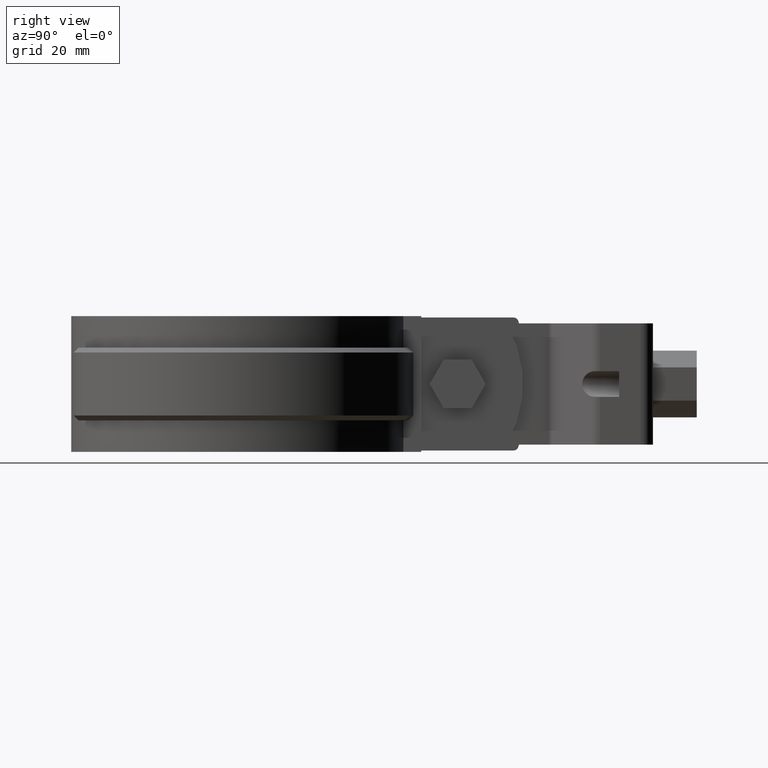
[diagram: clean part render]
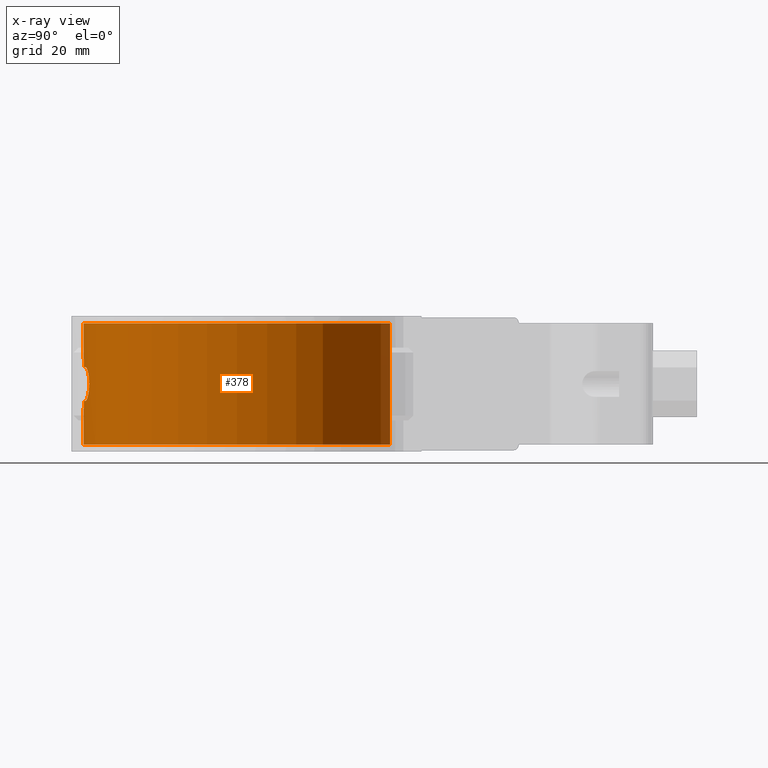
[diagram: x-ray — body ghosted, one internal face saturated and labeled with its STEP entity id]
A machine part, right view, then the same camera in x-ray: the body is ghosted and one INTERNAL B-rep face — a face not visible from any outside direction — is saturated and labeled: STEP entity #378.
In plain terms, the highlighted cylindrical surface (partial cylindrical patch) has radius 31.95 mm, axis along (0, 0, -1).
Its self-contained STEP definition (entity closure, byte-faithful):
#378 = ADVANCED_FACE( '', ( #737, #738 ), #739, .F. );
#737 = FACE_OUTER_BOUND( '', #1472, .T. );
#738 = FACE_BOUND( '', #1473, .T. );
#739 = CYLINDRICAL_SURFACE( '', #1474, 31.9500000000000 );
#1472 = EDGE_LOOP( '', ( #3282, #3283, #3284, #3285 ) );
#1473 = EDGE_LOOP( '', ( #3286, #3287, #3288, #3289, #3290, #3291, #3292, #3293, #3294, #3295, #3296, #3297, #3298, #3299, #3300, #3301 ) );
#1474 = AXIS2_PLACEMENT_3D( '', #3302, #3303, #3304 );
#3282 = ORIENTED_EDGE( '', *, *, #6882, .T. );
#3283 = ORIENTED_EDGE( '', *, *, #6883, .F. );
#3284 = ORIENTED_EDGE( '', *, *, #6884, .F. );
#3285 = ORIENTED_EDGE( '', *, *, #6885, .T. );
#3286 = ORIENTED_EDGE( '', *, *, #6886, .T. );
#3287 = ORIENTED_EDGE( '', *, *, #6887, .T. );
#3288 = ORIENTED_EDGE( '', *, *, #6888, .T. );
#3289 = ORIENTED_EDGE( '', *, *, #6889, .T. );
#3290 = ORIENTED_EDGE( '', *, *, #6890, .T. );
#3291 = ORIENTED_EDGE( '', *, *, #6891, .T. );
#3292 = ORIENTED_EDGE( '', *, *, #6892, .T. );
#3293 = ORIENTED_EDGE( '', *, *, #6893, .T. );
#3294 = ORIENTED_EDGE( '', *, *, #6894, .T. );
#3295 = ORIENTED_EDGE( '', *, *, #6895, .T. );
#3296 = ORIENTED_EDGE( '', *, *, #6869, .T. );
#3297 = ORIENTED_EDGE( '', *, *, #6896, .T. );
#3298 = ORIENTED_EDGE( '', *, *, #6879, .T. );
#3299 = ORIENTED_EDGE( '', *, *, #6875, .T. );
#3300 = ORIENTED_EDGE( '', *, *, #6878, .T. );
#3301 = ORIENTED_EDGE( '', *, *, #6897, .T. );
#3302 = CARTESIAN_POINT( '', ( 0.000000000000000, 0.000000000000000, 0.000000000000000 ) );
#3303 = DIRECTION( '', ( 0.000000000000000, 0.000000000000000, -1.00000000000000 ) );
#3304 = DIRECTION( '', ( 1.00000000000000, -6.12303176911189E-017, 0.000000000000000 ) );
#6869 = EDGE_CURVE( '', #7855, #7853, #7856, .T. );
#6875 = EDGE_CURVE( '', #7865, #7863, #7866, .T. );
#6878 = EDGE_CURVE( '', #7863, #7868, #7870, .T. );
#6879 = EDGE_CURVE( '', #7871, #7865, #7872, .T. );
#6882 = EDGE_CURVE( '', #7875, #7876, #7877, .T. );
#6883 = EDGE_CURVE( '', #7878, #7876, #7879, .T. );
#6884 = EDGE_CURVE( '', #7880, #7878, #7881, .T. );
#6885 = EDGE_CURVE( '', #7880, #7875, #7882, .T. );
#6886 = EDGE_CURVE( '', #7883, #7884, #7885, .T. );
#6887 = EDGE_CURVE( '', #7884, #7886, #7887, .T. );
#6888 = EDGE_CURVE( '', #7886, #7888, #7889, .T. );
#6889 = EDGE_CURVE( '', #7888, #7890, #7891, .F. );
#6890 = EDGE_CURVE( '', #7890, #7892, #7893, .T. );
#6891 = EDGE_CURVE( '', #7892, #7894, #7895, .T. );
#6892 = EDGE_CURVE( '', #7894, #7896, #7897, .T. );
#6893 = EDGE_CURVE( '', #7896, #7898, #7899, .F. );
#6894 = EDGE_CURVE( '', #7898, #7900, #7901, .T. );
#6895 = EDGE_CURVE( '', #7900, #7855, #7902, .T. );
#6896 = EDGE_CURVE( '', #7853, #7871, #7903, .F. );
#6897 = EDGE_CURVE( '', #7868, #7883, #7904, .F. );
#7853 = VERTEX_POINT( '', #9865 );
#7855 = VERTEX_POINT( '', #9868 );
#7856 = CIRCLE( '', #9869, 31.9500000000000 );
#7863 = VERTEX_POINT( '', #9917 );
#7865 = VERTEX_POINT( '', #9920 );
#7866 = B_SPLINE_CURVE_WITH_KNOTS( '', 3, ( #9921, #9922, #9923, #9924, #9925, #9926, #9927, #9928, #9929, #9930 ), .UNSPECIFIED., .F., .F., ( 4, 2, 2, 2, 4 ), ( 3.60405501852931E-018, 0.000671592562954830, 0.00134318512590966, 0.00201477768886448, 0.00268637025181931 ), .UNSPECIFIED. );
#7868 = VERTEX_POINT( '', #9933 );
#7870 = ELLIPSE( '', #9936, 145.550148496922, 31.9500000000000 );
#7871 = VERTEX_POINT( '', #9937 );
#7872 = ELLIPSE( '', #9938, 145.550074248428, 31.9500000000000 );
#7875 = VERTEX_POINT( '', #9942 );
#7876 = VERTEX_POINT( '', #9943 );
#7877 = LINE( '', #9944, #9945 );
#7878 = VERTEX_POINT( '', #9946 );
#7879 = CIRCLE( '', #9947, 31.9500000000000 );
#7880 = VERTEX_POINT( '', #9948 );
#7881 = LINE( '', #9949, #9950 );
#7882 = CIRCLE( '', #9951, 31.9500000000000 );
#7883 = VERTEX_POINT( '', #9952 );
#7884 = VERTEX_POINT( '', #9953 );
#7885 = CIRCLE( '', #9954, 31.9500000000000 );
#7886 = VERTEX_POINT( '', #9955 );
#7887 = B_SPLINE_CURVE_WITH_KNOTS( '', 3, ( #9956, #9957, #9958, #9959, #9960, #9961, #9962, #9963, #9964, #9965, #9966, #9967, #9968, #9969, #9970, #9971, #9972, #9973, #9974, #9975, #9976, #9977, #9978, #9979, #9980, #9981, #9982, #9983, #9984, #9985, #9986, #9987, #9988, #9989 ), .UNSPECIFIED., .F., .F., ( 4, 2, 2, 2, 2, 2, 2, 2, 2, 2, 2, 2, 2, 2, 2, 2, 4 ), ( 5.20417042793042E-018, 0.000691058954399837, 0.00138211790879967, 0.00207317686319950, 0.00276423581759933, 0.00345529477199916, 0.00414635372639900, 0.00483741268079883, 0.00552847163519866, 0.00621953058959849, 0.00691058954399832, 0.00760164849839815, 0.00829270745279798, 0.00898376640719781, 0.00967482536159764, 0.0103658843159975, 0.0110569432703973 ), .UNSPECIFIED. );
#7888 = VERTEX_POINT( '', #9990 );
#7889 = CIRCLE( '', #9991, 31.9500000000000 );
#7890 = VERTEX_POINT( '', #9992 );
#7891 = B_SPLINE_CURVE_WITH_KNOTS( '', 3, ( #9993, #9994, #9995, #9996, #9997, #9998 ), .UNSPECIFIED., .F., .F., ( 4, 2, 4 ), ( 0.00245696408837228, 0.00279257462103916, 0.00312818515370604 ), .UNSPECIFIED. );
#7892 = VERTEX_POINT( '', #9999 );
#7893 = ELLIPSE( '', #10000, 145.550074248420, 31.9500000000000 );
#7894 = VERTEX_POINT( '', #10001 );
#7895 = B_SPLINE_CURVE_WITH_KNOTS( '', 3, ( #10002, #10003, #10004, #10005, #10006, #10007, #10008, #10009, #10010, #10011 ), .UNSPECIFIED., .F., .F., ( 4, 2, 2, 2, 4 ), ( 1.08420217248550E-019, 0.000671592562954848, 0.00134318512590970, 0.00201477768886454, 0.00268637025181939 ), .UNSPECIFIED. );
#7896 = VERTEX_POINT( '', #10012 );
#7897 = ELLIPSE( '', #10013, 145.550148496892, 31.9500000000000 );
#7898 = VERTEX_POINT( '', #10014 );
#7899 = B_SPLINE_CURVE_WITH_KNOTS( '', 3, ( #10015, #10016, #10017, #10018, #10019, #10020 ), .UNSPECIFIED., .F., .F., ( 4, 2, 4 ), ( 4.77048955893622E-018, 0.000335975598449060, 0.000671951196898115 ), .UNSPECIFIED. );
#7900 = VERTEX_POINT( '', #10021 );
#7901 = CIRCLE( '', #10022, 31.9500000000000 );
#7902 = B_SPLINE_CURVE_WITH_KNOTS( '', 3, ( #10023, #10024, #10025, #10026, #10027, #10028, #10029, #10030, #10031, #10032, #10033, #10034, #10035, #10036, #10037, #10038, #10039, #10040, #10041, #10042, #10043, #10044, #10045, #10046, #10047, #10048, #10049, #10050, #10051, #10052, #10053, #10054, #10055, #10056 ), .UNSPECIFIED., .F., .F., ( 4, 2, 2, 2, 2, 2, 2, 2, 2, 2, 2, 2, 2, 2, 2, 2, 4 ), ( 3.46944695195361E-018, 0.000691058954399840, 0.00138211790879968, 0.00207317686319951, 0.00276423581759934, 0.00345529477199918, 0.00414635372639901, 0.00483741268079885, 0.00552847163519868, 0.00621953058959852, 0.00691058954399835, 0.00760164849839818, 0.00829270745279802, 0.00898376640719785, 0.00967482536159768, 0.0103658843159975, 0.0110569432703973 ), .UNSPECIFIED. );
#7903 = B_SPLINE_CURVE_WITH_KNOTS( '', 3, ( #10057, #10058, #10059, #10060, #10061, #10062 ), .UNSPECIFIED., .F., .F., ( 4, 2, 4 ), ( 0.000892083918592421, 0.00122805077175427, 0.00156401762491611 ), .UNSPECIFIED. );
#7904 = B_SPLINE_CURVE_WITH_KNOTS( '', 3, ( #10063, #10064, #10065, #10066, #10067, #10068 ), .UNSPECIFIED., .F., .F., ( 4, 2, 4 ), ( 0.00156453892173747, 0.00190050922010568, 0.00223647951847388 ), .UNSPECIFIED. );
#9865 = CARTESIAN_POINT( '', ( -1.64999999892707, -31.9073659207955, -16.0000000000000 ) );
#9868 = CARTESIAN_POINT( '', ( -5.00000000000005, -31.5563385075011, -16.0000000000000 ) );
#9869 = AXIS2_PLACEMENT_3D( '', #13493, #13494, #13495 );
#9917 = CARTESIAN_POINT( '', ( 0.975610000000007, -31.9351011447889, -17.2195120000000 ) );
#9920 = CARTESIAN_POINT( '', ( -0.975609757981846, -31.9351011521825, -17.2195121867475 ) );
#9921 = CARTESIAN_POINT( '', ( -0.975609757981839, -31.9351011521825, -17.2195121867475 ) );
#9922 = CARTESIAN_POINT( '', ( -0.925762131807944, -31.9366239853270, -17.4410571018355 ) );
#9923 = CARTESIAN_POINT( '', ( -0.802004281958664, -31.9404248091216, -17.6390185031404 ) );
#9924 = CARTESIAN_POINT( '', ( -0.447401219951479, -31.9473595153624, -17.9227067066605 ) );
#9925 = CARTESIAN_POINT( '', ( -0.227087531318257, -31.9500000050751, -18.0000001428732 ) );
#9926 = CARTESIAN_POINT( '', ( 0.227088959384760, -31.9499999949249, -17.9999998639938 ) );
#9927 = CARTESIAN_POINT( '', ( 0.447420557608757, -31.9473591883756, -17.9226947545560 ) );
#9928 = CARTESIAN_POINT( '', ( 0.802003382571697, -31.9404247755224, -17.6390160241652 ) );
#9929 = CARTESIAN_POINT( '', ( 0.925762415293151, -31.9366239770447, -17.4410569288084 ) );
#9930 = CARTESIAN_POINT( '', ( 0.975610000000002, -31.9351011447889, -17.2195120000000 ) );
#9933 = CARTESIAN_POINT( '', ( 1.16219510888043, -31.9288553275700, -16.3902439605210 ) );
#9936 = AXIS2_PLACEMENT_3D( '', #13504, #13505, #13506 );
#9937 = CARTESIAN_POINT( '', ( -1.16219499999879, -31.9288553315332, -16.3902439999999 ) );
#9938 = AXIS2_PLACEMENT_3D( '', #13507, #13508, #13509 );
#9942 = CARTESIAN_POINT( '', ( 6.85622317596566, 31.2056838374254, 0.000000000000000 ) );
#9943 = CARTESIAN_POINT( '', ( 6.85622317596566, 31.2056838374254, -25.0000000000000 ) );
#9944 = CARTESIAN_POINT( '', ( 6.85622317596565, 31.2056838374254, 0.000000000000000 ) );
#9945 = VECTOR( '', #13514, 1000.00000000000 );
#9946 = CARTESIAN_POINT( '', ( -6.85622317596566, 31.2056838374254, -25.0000000000000 ) );
#9947 = AXIS2_PLACEMENT_3D( '', #13515, #13516, #13517 );
#9948 = CARTESIAN_POINT( '', ( -6.85622317596566, 31.2056838374254, 0.000000000000000 ) );
#9949 = CARTESIAN_POINT( '', ( -6.85622317596565, 31.2056838374254, 0.000000000000000 ) );
#9950 = VECTOR( '', #13518, 1000.00000000000 );
#9951 = AXIS2_PLACEMENT_3D( '', #13519, #13520, #13521 );
#9952 = CARTESIAN_POINT( '', ( 1.65000000000015, -31.9073659207400, -15.9999999999987 ) );
#9953 = CARTESIAN_POINT( '', ( 4.99999999999994, -31.5563385075012, -16.0000000000000 ) );
#9954 = AXIS2_PLACEMENT_3D( '', #13522, #13523, #13524 );
#9955 = CARTESIAN_POINT( '', ( 4.99999999999997, -31.5563385075012, -9.00000000000000 ) );
#9956 = CARTESIAN_POINT( '', ( 4.99999999999995, -31.5563385075012, -16.0000000000000 ) );
#9957 = CARTESIAN_POINT( '', ( 5.23082435471580, -31.5197651333974, -16.0000000000000 ) );
#9958 = CARTESIAN_POINT( '', ( 5.45740099431630, -31.4812710180263, -15.9773928664094 ) );
#9959 = CARTESIAN_POINT( '', ( 5.90252540393368, -31.4008573828663, -15.8892365972607 ) );
#9960 = CARTESIAN_POINT( '', ( 6.12322775057544, -31.3584895976071, -15.8227078336852 ) );
#9961 = CARTESIAN_POINT( '', ( 6.54497963023803, -31.2731838732231, -15.6488197582341 ) );
#9962 = CARTESIAN_POINT( '', ( 6.74493879792320, -31.2305282998837, -15.5424935842978 ) );
#9963 = CARTESIAN_POINT( '', ( 7.12349560628819, -31.1463626708603, -15.2914772127076 ) );
#9964 = CARTESIAN_POINT( '', ( 7.30327388090089, -31.1045384738789, -15.1451355231359 ) );
#9965 = CARTESIAN_POINT( '', ( 7.62647749208518, -31.0268748686551, -14.8245275842126 ) );
#9966 = CARTESIAN_POINT( '', ( 7.77172877808551, -30.9906490826262, -14.6494767480404 ) );
#9967 = CARTESIAN_POINT( '', ( 8.02881034475342, -30.9250433016768, -14.2689088741788 ) );
#9968 = CARTESIAN_POINT( '', ( 8.13944714984425, -30.8959592502532, -14.0640836486862 ) );
#9969 = CARTESIAN_POINT( '', ( 8.31654539734058, -30.8487596274532, -13.6414958143295 ) );
#9970 = CARTESIAN_POINT( '', ( 8.38456336319774, -30.8302431254002, -13.4215270883583 ) );
#9971 = CARTESIAN_POINT( '', ( 8.47695894340376, -30.8049664994886, -12.9639373233133 ) );
#9972 = CARTESIAN_POINT( '', ( 8.49975084488284, -30.7986482761930, -12.7342671979455 ) );
#9973 = CARTESIAN_POINT( '', ( 8.50024513194280, -30.7985118595463, -12.2732377619573 ) );
#9974 = CARTESIAN_POINT( '', ( 8.47723598761926, -30.8048890747898, -12.0391799677513 ) );
#9975 = CARTESIAN_POINT( '', ( 8.38632453918896, -30.8297629187006, -11.5854884741005 ) );
#9976 = CARTESIAN_POINT( '', ( 8.31911636750157, -30.8480670597381, -11.3656954909928 ) );
#9977 = CARTESIAN_POINT( '', ( 8.14159458149668, -30.8953940924643, -10.9400116456583 ) );
#9978 = CARTESIAN_POINT( '', ( 8.03087726938526, -30.9245022710998, -10.7347952129568 ) );
#9979 = CARTESIAN_POINT( '', ( 7.77576953824415, -30.9896311452605, -10.3558758354908 ) );
#9980 = CARTESIAN_POINT( '', ( 7.63013060726707, -31.0259858186443, -10.1793598855827 ) );
#9981 = CARTESIAN_POINT( '', ( 7.30363732587380, -31.1044622347787, -9.85496453279605 ) );
#9982 = CARTESIAN_POINT( '', ( 7.12736355458517, -31.1454750556619, -9.71149362195776 ) );
#9983 = CARTESIAN_POINT( '', ( 6.74967310139166, -31.2295027290931, -9.46024876806900 ) );
#9984 = CARTESIAN_POINT( '', ( 6.54588777106777, -31.2729911935889, -9.35165253265568 ) );
#9985 = CARTESIAN_POINT( '', ( 6.12488272248291, -31.3581637941627, -9.17787723939500 ) );
#9986 = CARTESIAN_POINT( '', ( 5.90802429860360, -31.3998285083849, -9.11217951782650 ) );
#9987 = CARTESIAN_POINT( '', ( 5.46147451145796, -31.4805698428343, -9.02309375715083 ) );
#9988 = CARTESIAN_POINT( '', ( 5.23082732099570, -31.5197646634000, -9.00000000000000 ) );
#9989 = CARTESIAN_POINT( '', ( 5.00000000000001, -31.5563385075012, -9.00000000000000 ) );
#9990 = CARTESIAN_POINT( '', ( 1.64999999892696, -31.9073659207955, -8.99999999999997 ) );
#9991 = AXIS2_PLACEMENT_3D( '', #13525, #13526, #13527 );
#9992 = CARTESIAN_POINT( '', ( 1.16219499999185, -31.9288553315335, -8.60975600000301 ) );
#9993 = CARTESIAN_POINT( '', ( 1.16219500000031, -31.9288553315332, -8.60975600000146 ) );
#9994 = CARTESIAN_POINT( '', ( 1.18677253729339, -31.9279607209792, -8.71898950126939 ) );
#9995 = CARTESIAN_POINT( '', ( 1.25011843856453, -31.9256534477962, -8.82034120557223 ) );
#9996 = CARTESIAN_POINT( '', ( 1.42482715288864, -31.9183334740962, -8.96024005161792 ) );
#9997 = CARTESIAN_POINT( '', ( 1.53667046018044, -31.9132264402490, -8.99999999999994 ) );
#9998 = CARTESIAN_POINT( '', ( 1.64999999785397, -31.9073659208510, -8.99999999999994 ) );
#9999 = CARTESIAN_POINT( '', ( 0.975609757981811, -31.9351011521825, -7.78048781325256 ) );
#10000 = AXIS2_PLACEMENT_3D( '', #13528, #13529, #13530 );
#10001 = CARTESIAN_POINT( '', ( -0.975610000000026, -31.9351011447889, -7.78048800000004 ) );
#10002 = CARTESIAN_POINT( '', ( 0.975609757981811, -31.9351011521825, -7.78048781325256 ) );
#10003 = CARTESIAN_POINT( '', ( 0.925762131807930, -31.9366239853270, -7.55894289816457 ) );
#10004 = CARTESIAN_POINT( '', ( 0.802004281958659, -31.9404248091217, -7.36098149685959 ) );
#10005 = CARTESIAN_POINT( '', ( 0.447401219951479, -31.9473595153625, -7.07729329333946 ) );
#10006 = CARTESIAN_POINT( '', ( 0.227087531318245, -31.9500000050751, -6.99999985712680 ) );
#10007 = CARTESIAN_POINT( '', ( -0.227088959384780, -31.9499999949249, -7.00000013600623 ) );
#10008 = CARTESIAN_POINT( '', ( -0.447420557608791, -31.9473591883756, -7.07730524544404 ) );
#10009 = CARTESIAN_POINT( '', ( -0.802003382571729, -31.9404247755224, -7.36098397583482 ) );
#10010 = CARTESIAN_POINT( '', ( -0.925762415293181, -31.9366239770447, -7.55894307119159 ) );
#10011 = CARTESIAN_POINT( '', ( -0.975610000000021, -31.9351011447889, -7.78048800000004 ) );
#10012 = CARTESIAN_POINT( '', ( -1.16219510888267, -31.9288553275699, -8.60975603947825 ) );
#10013 = AXIS2_PLACEMENT_3D( '', #13531, #13532, #13533 );
#10014 = CARTESIAN_POINT( '', ( -1.65000000000003, -31.9073659207400, -8.99999999999997 ) );
#10015 = CARTESIAN_POINT( '', ( -1.65000000000003, -31.9073659207400, -8.99999999999994 ) );
#10016 = CARTESIAN_POINT( '', ( -1.53654884927110, -31.9132327290239, -8.99999999999994 ) );
#10017 = CARTESIAN_POINT( '', ( -1.42641882536861, -31.9182660135410, -8.96141117020713 ) );
#10018 = CARTESIAN_POINT( '', ( -1.24908107854311, -31.9256976812686, -8.81961356050597 ) );
#10019 = CARTESIAN_POINT( '', ( -1.18712910067626, -31.9279477421582, -8.72057384239649 ) );
#10020 = CARTESIAN_POINT( '', ( -1.16219510888267, -31.9288553275699, -8.60975603947825 ) );
#10021 = CARTESIAN_POINT( '', ( -5.00000000000005, -31.5563385075011, -9.00000000000000 ) );
#10022 = AXIS2_PLACEMENT_3D( '', #13534, #13535, #13536 );
#10023 = CARTESIAN_POINT( '', ( -5.00000000000006, -31.5563385075011, -9.00000000000000 ) );
#10024 = CARTESIAN_POINT( '', ( -5.23082435471590, -31.5197651333974, -9.00000000000000 ) );
#10025 = CARTESIAN_POINT( '', ( -5.45740099431641, -31.4812710180263, -9.02260713359055 ) );
#10026 = CARTESIAN_POINT( '', ( -5.90252540393379, -31.4008573828662, -9.11076340273932 ) );
#10027 = CARTESIAN_POINT( '', ( -6.12322775057555, -31.3584895976071, -9.17729216631478 ) );
#10028 = CARTESIAN_POINT( '', ( -6.54497963023814, -31.2731838732231, -9.35118024176590 ) );
#10029 = CARTESIAN_POINT( '', ( -6.74493879792332, -31.2305282998837, -9.45750641570215 ) );
#10030 = CARTESIAN_POINT( '', ( -7.12349560628831, -31.1463626708603, -9.70852278729238 ) );
#10031 = CARTESIAN_POINT( '', ( -7.30327388090100, -31.1045384738789, -9.85486447686413 ) );
#10032 = CARTESIAN_POINT( '', ( -7.62647749208530, -31.0268748686551, -10.1754724157874 ) );
#10033 = CARTESIAN_POINT( '', ( -7.77172877808562, -30.9906490826262, -10.3505232519596 ) );
#10034 = CARTESIAN_POINT( '', ( -8.02881034475353, -30.9250433016768, -10.7310911258213 ) );
#10035 = CARTESIAN_POINT( '', ( -8.13944714984436, -30.8959592502532, -10.9359163513138 ) );
#10036 = CARTESIAN_POINT( '', ( -8.31654539734069, -30.8487596274532, -11.3585041856705 ) );
#10037 = CARTESIAN_POINT( '', ( -8.38456336319785, -30.8302431254002, -11.5784729116417 ) );
#10038 = CARTESIAN_POINT( '', ( -8.47695894340387, -30.8049664994885, -12.0360626766867 ) );
#10039 = CARTESIAN_POINT( '', ( -8.49975084488295, -30.7986482761930, -12.2657328020545 ) );
#10040 = CARTESIAN_POINT( '', ( -8.50024513194291, -30.7985118595463, -12.7267622380427 ) );
#10041 = CARTESIAN_POINT( '', ( -8.47723598761937, -30.8048890747898, -12.9608200322488 ) );
#10042 = CARTESIAN_POINT( '', ( -8.38632453918906, -30.8297629187006, -13.4145115258995 ) );
#10043 = CARTESIAN_POINT( '', ( -8.31911636750167, -30.8480670597381, -13.6343045090072 ) );
#10044 = CARTESIAN_POINT( '', ( -8.14159458149678, -30.8953940924643, -14.0599883543417 ) );
#10045 = CARTESIAN_POINT( '', ( -8.03087726938536, -30.9245022710998, -14.2652047870432 ) );
#10046 = CARTESIAN_POINT( '', ( -7.77576953824425, -30.9896311452605, -14.6441241645092 ) );
#10047 = CARTESIAN_POINT( '', ( -7.63013060726716, -31.0259858186443, -14.8206401144173 ) );
#10048 = CARTESIAN_POINT( '', ( -7.30363732587390, -31.1044622347787, -15.1450354672040 ) );
#10049 = CARTESIAN_POINT( '', ( -7.12736355458527, -31.1454750556618, -15.2885063780423 ) );
#10050 = CARTESIAN_POINT( '', ( -6.74967310139175, -31.2295027290931, -15.5397512319310 ) );
#10051 = CARTESIAN_POINT( '', ( -6.54588777106786, -31.2729911935889, -15.6483474673443 ) );
#10052 = CARTESIAN_POINT( '', ( -6.12488272248299, -31.3581637941627, -15.8221227606050 ) );
#10053 = CARTESIAN_POINT( '', ( -5.90802429860368, -31.3998285083849, -15.8878204821735 ) );
#10054 = CARTESIAN_POINT( '', ( -5.46147451145804, -31.4805698428343, -15.9769062428492 ) );
#10055 = CARTESIAN_POINT( '', ( -5.23082732099575, -31.5197646633999, -16.0000000000000 ) );
#10056 = CARTESIAN_POINT( '', ( -5.00000000000006, -31.5563385075011, -16.0000000000000 ) );
#10057 = CARTESIAN_POINT( '', ( -1.16219499999993, -31.9288553315332, -16.3902440000002 ) );
#10058 = CARTESIAN_POINT( '', ( -1.18682793912374, -31.9279587043792, -16.2807642683667 ) );
#10059 = CARTESIAN_POINT( '', ( -1.25015158656930, -31.9256528125023, -16.1795313613339 ) );
#10060 = CARTESIAN_POINT( '', ( -1.42534312346571, -31.9183110999662, -16.0394479889348 ) );
#10061 = CARTESIAN_POINT( '', ( -1.53793627712734, -31.9131609820772, -15.9999999997594 ) );
#10062 = CARTESIAN_POINT( '', ( -1.64999999892707, -31.9073659207955, -15.9999999999999 ) );
#10063 = CARTESIAN_POINT( '', ( 1.65000000000023, -31.9073659207400, -16.0000000000000 ) );
#10064 = CARTESIAN_POINT( '', ( 1.53793613482836, -31.9131609894396, -16.0000000000000 ) );
#10065 = CARTESIAN_POINT( '', ( 1.42535101900848, -31.9183107642205, -16.0394423341153 ) );
#10066 = CARTESIAN_POINT( '', ( 1.25014723326488, -31.9256529998041, -16.1795342558089 ) );
#10067 = CARTESIAN_POINT( '', ( 1.18682924903734, -31.9279586566149, -16.2807588322954 ) );
#10068 = CARTESIAN_POINT( '', ( 1.16219510888271, -31.9288553275699, -16.3902439605214 ) );
#13493 = CARTESIAN_POINT( '', ( 0.000000000000000, 0.000000000000000, -16.0000000000000 ) );
#13494 = DIRECTION( '', ( -2.29561756065156E-049, 3.74915180455535E-033, 1.00000000000000 ) );
#13495 = DIRECTION( '', ( 0.000000000000000, -1.00000000000000, 3.74915180455535E-033 ) );
#13504 = CARTESIAN_POINT( '', ( 0.000000000000000, 0.000000000000000, -21.5555610922364 ) );
#13505 = DIRECTION( '', ( -0.975609806487721, 0.000000000000000, 0.219511971165564 ) );
#13506 = DIRECTION( '', ( 0.219511971165564, 0.000000000000000, 0.975609806487721 ) );
#13507 = CARTESIAN_POINT( '', ( 0.000000000000000, 0.000000000000000, -21.5555578794501 ) );
#13508 = DIRECTION( '', ( 0.975609781292650, 0.000000000000000, 0.219512083143750 ) );
#13509 = DIRECTION( '', ( -0.219512083143750, 0.000000000000000, 0.975609781292650 ) );
#13514 = DIRECTION( '', ( 0.000000000000000, 0.000000000000000, -1.00000000000000 ) );
#13515 = CARTESIAN_POINT( '', ( 0.000000000000000, 0.000000000000000, -25.0000000000000 ) );
#13516 = DIRECTION( '', ( 0.000000000000000, 0.000000000000000, 1.00000000000000 ) );
#13517 = DIRECTION( '', ( 1.00000000000000, 0.000000000000000, 0.000000000000000 ) );
#13518 = DIRECTION( '', ( 0.000000000000000, 0.000000000000000, -1.00000000000000 ) );
#13519 = CARTESIAN_POINT( '', ( 0.000000000000000, 0.000000000000000, 0.000000000000000 ) );
#13520 = DIRECTION( '', ( 0.000000000000000, 0.000000000000000, 1.00000000000000 ) );
#13521 = DIRECTION( '', ( 1.00000000000000, 0.000000000000000, 0.000000000000000 ) );
#13522 = CARTESIAN_POINT( '', ( 0.000000000000000, 0.000000000000000, -16.0000000000000 ) );
#13523 = DIRECTION( '', ( -2.29561756065156E-049, 3.74915180455535E-033, 1.00000000000000 ) );
#13524 = DIRECTION( '', ( 0.000000000000000, -1.00000000000000, 3.74915180455535E-033 ) );
#13525 = CARTESIAN_POINT( '', ( 0.000000000000000, 0.000000000000000, -9.00000000000000 ) );
#13526 = DIRECTION( '', ( 6.12303176911189E-017, 0.000000000000000, -1.00000000000000 ) );
#13527 = DIRECTION( '', ( -1.00000000000000, 0.000000000000000, -6.12303176911189E-017 ) );
#13528 = CARTESIAN_POINT( '', ( 0.000000000000000, 0.000000000000000, -3.44444212055032 ) );
#13529 = DIRECTION( '', ( -0.975609781292647, 0.000000000000000, -0.219512083143762 ) );
#13530 = DIRECTION( '', ( -0.219512083143762, 0.000000000000000, 0.975609781292647 ) );
#13531 = CARTESIAN_POINT( '', ( 0.000000000000000, 0.000000000000000, -3.44443890776445 ) );
#13532 = DIRECTION( '', ( 0.975609806487711, 0.000000000000000, -0.219511971165610 ) );
#13533 = DIRECTION( '', ( 0.219511971165610, 0.000000000000000, 0.975609806487711 ) );
#13534 = CARTESIAN_POINT( '', ( 0.000000000000000, 0.000000000000000, -9.00000000000000 ) );
#13535 = DIRECTION( '', ( 6.12303176911189E-017, 0.000000000000000, -1.00000000000000 ) );
#13536 = DIRECTION( '', ( -1.00000000000000, 0.000000000000000, -6.12303176911189E-017 ) );